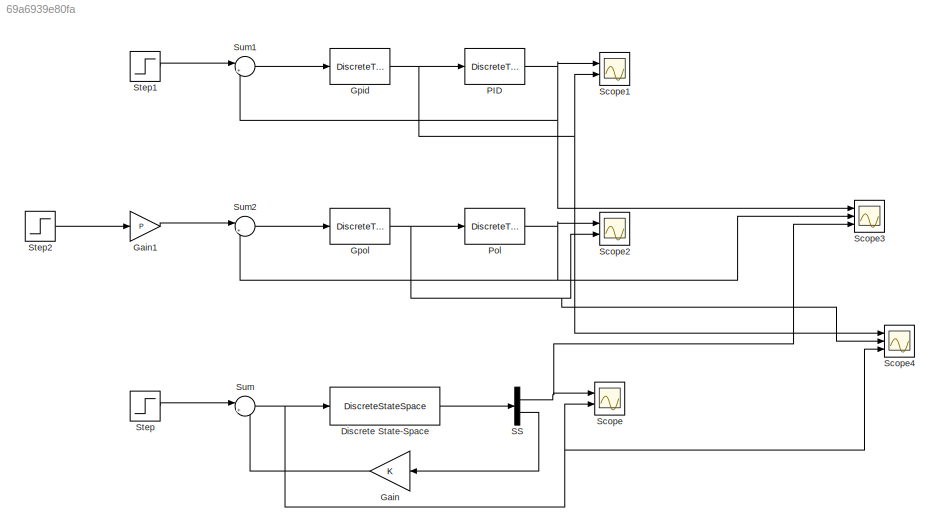
MODEL slx_69a6939e80fa
KIND model
CONFIG AbsTol = auto
CONFIG EnableMultiTasking = off
CONFIG FixedStep = auto
CONFIG MaxStep = auto
CONFIG MinStep = auto
CONFIG RelTol = 1e-3
CONFIG SampleTimeConstraint = Unconstrained
CONFIG SolverName = VariableStepAuto
CONFIG StartTime = 0.0
CONFIG StopTime = 20
BLOCK [DiscreteStateSpace] Discrete State-Space
  A = A
  B = B
  C = [C;eye(n)]
  D = zeros(n+1,1)
  SampleTime = T
BLOCK [Gain] Gain
  Gain = K
  Multiplication = Matrix(K*u)
  NameLocation = top
BLOCK [Gain] Gain1
  Gain = P
BLOCK [DiscreteTransferFcn] Gpid
  Denominator = Gpid.den{1}
  InputPortMap = u0
  Numerator = Gpid.num{1}
  Ports = [1, 1]
BLOCK [DiscreteTransferFcn] Gpol
  Denominator = Gpol.den{1}
  InputPortMap = u0
  Numerator = Gpol.num{1}
  Ports = [1, 1]
BLOCK [DiscreteTransferFcn] PID
  Denominator = Gz.den{1}
  InputPortMap = u0
  Numerator = Gz.num{1}
  Ports = [1, 1]
BLOCK [DiscreteTransferFcn] Pol
  Denominator = Gz.den{1}
  InputPortMap = u0
  Numerator = Gz.num{1}
  Ports = [1, 1]
BLOCK [Demux] SS
  Outputs = [1 3]
  Ports = [1, 2]
BLOCK [Scope] Scope
  Floating = off
  NumInputPorts = 2
  Ports = [2]
  ScopeSpecificationString = Simulink.scopes.TimeScopeBlockCfg('CurrentConfiguration', extmgr.ConfigurationSet(extmgr.Configuration('Core','General UI',true),extmgr.Configuration('Core','Source UI',true),extmgr.Configuration('Sources','WiredSimulink',true),extmgr.Configuration('Visuals','Time Domain',true,'SerializedDisplays',{struct('MinYLimReal','-0.13638','MaxYLimReal','1.22744','YLabelReal','','MinYLimMag','0.00000','MaxY...<+1989ch>
BLOCK [Scope] Scope1
  Floating = off
  NumInputPorts = 2
  Ports = [2]
  ScopeSpecificationString = Simulink.scopes.TimeScopeBlockCfg('CurrentConfiguration', extmgr.ConfigurationSet(extmgr.Configuration('Core','General UI',true),extmgr.Configuration('Core','Source UI',true),extmgr.Configuration('Sources','WiredSimulink',true,'DataLoggingVariableName','ScopeData1'),extmgr.Configuration('Visuals','Time Domain',true,'SerializedDisplays',{struct('MinYLimReal','-0.13659','MaxYLimReal','1.22928','YLab...<+2028ch>
BLOCK [Scope] Scope2
  Floating = off
  NumInputPorts = 2
  Ports = [2]
  ScopeSpecificationString = Simulink.scopes.TimeScopeBlockCfg('CurrentConfiguration', extmgr.ConfigurationSet(extmgr.Configuration('Core','General UI',true),extmgr.Configuration('Core','Source UI',true),extmgr.Configuration('Sources','WiredSimulink',true,'DataLoggingVariableName','ScopeData2'),extmgr.Configuration('Visuals','Time Domain',true,'SerializedDisplays',{struct('MinYLimReal','-0.13809','MaxYLimReal','1.24279','YLab...<+2028ch>
BLOCK [Scope] Scope3
  Floating = off
  NumInputPorts = 3
  Ports = [3]
  ScopeSpecificationString = Simulink.scopes.TimeScopeBlockCfg('CurrentConfiguration', extmgr.ConfigurationSet(extmgr.Configuration('Core','General UI',true,'FigureColor',[1 1 1]),extmgr.Configuration('Core','Source UI',true),extmgr.Configuration('Sources','WiredSimulink',true,'DataLoggingVariableName','ScopeData3'),extmgr.Configuration('Visuals','Time Domain',true,'SerializedDisplays',{struct('MinYLimReal','-0.13809','MaxYLi...<+1808ch>
BLOCK [Scope] Scope4
  Floating = off
  NumInputPorts = 3
  Ports = [3]
  ScopeSpecificationString = Simulink.scopes.TimeScopeBlockCfg('CurrentConfiguration', extmgr.ConfigurationSet(extmgr.Configuration('Core','General UI',true,'FigureColor',[1 1 1]),extmgr.Configuration('Core','Source UI',true),extmgr.Configuration('Sources','WiredSimulink',true,'DataLoggingVariableName','ScopeData4'),extmgr.Configuration('Visuals','Time Domain',true,'SerializedDisplays',{struct('MinYLimReal','-0.26743','MaxYLi...<+2209ch>
BLOCK [Step] Step
  After = 0.84
  SampleTime = 0
BLOCK [Step] Step1
  SampleTime = 0
BLOCK [Step] Step2
  SampleTime = 0
BLOCK [Sum] Sum
  Inputs = |+-
  Ports = [2, 1]
BLOCK [Sum] Sum1
  Inputs = |+-
  Ports = [2, 1]
BLOCK [Sum] Sum2
  Inputs = |+-
  Ports = [2, 1]
LINE Discrete State-Space:1 -> SS:1
LINE Gain1:1 -> Sum2:1
LINE Gain:1 -> Sum:2
NET Gpid:1 -> PID:1, Scope1:2, Scope4:1
NET Gpol:1 -> Pol:1, Scope2:2, Scope4:2
NET PID:1 -> Scope1:1, Scope3:1, Sum1:2
NET Pol:1 -> Scope2:1, Scope3:2, Sum2:2
NET SS:1 -> Scope3:3, Scope:1
LINE SS:2 -> Gain:1
LINE Step1:1 -> Sum1:1
LINE Step2:1 -> Gain1:1
LINE Step:1 -> Sum:1
LINE Sum1:1 -> Gpid:1
LINE Sum2:1 -> Gpol:1
NET Sum:1 -> Discrete State-Space:1, Scope4:3, Scope:2
note: NET lines group one-source signal fan-out (src -> all destinations, sorted); 1:1 wires keep LINE
